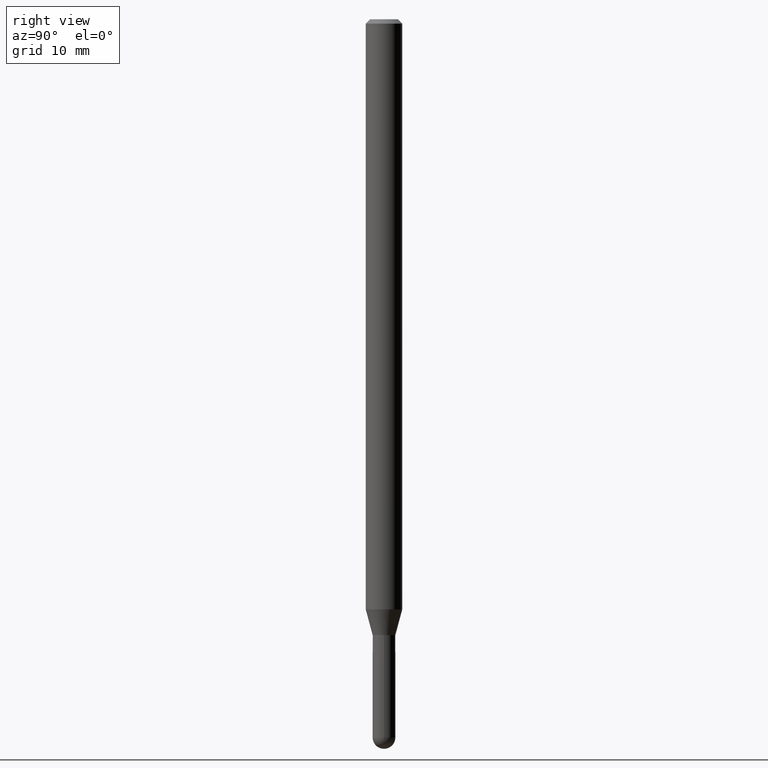
[diagram: clean part render]
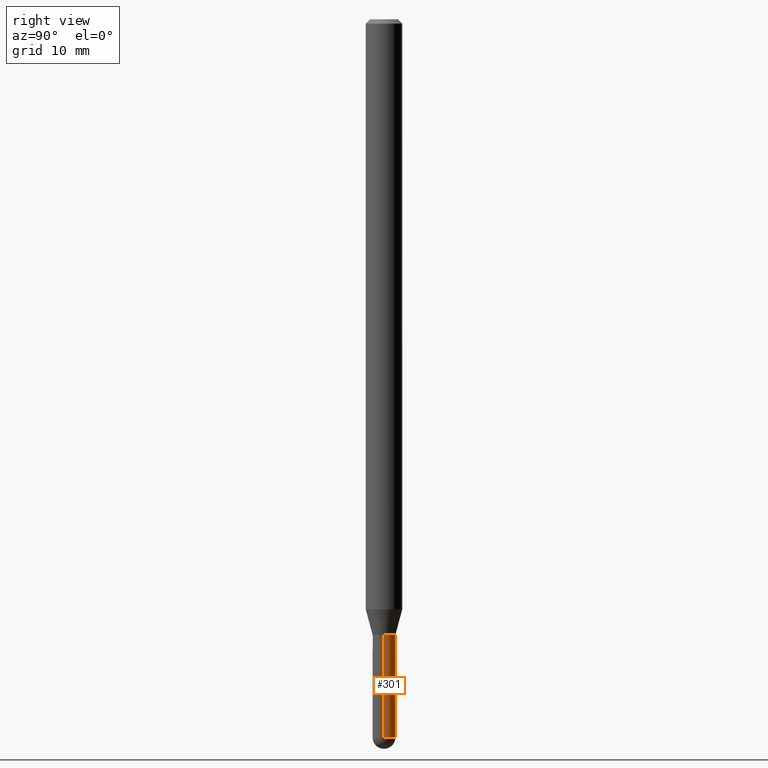
[diagram: same view with one face highlighted and labeled with its STEP entity id]
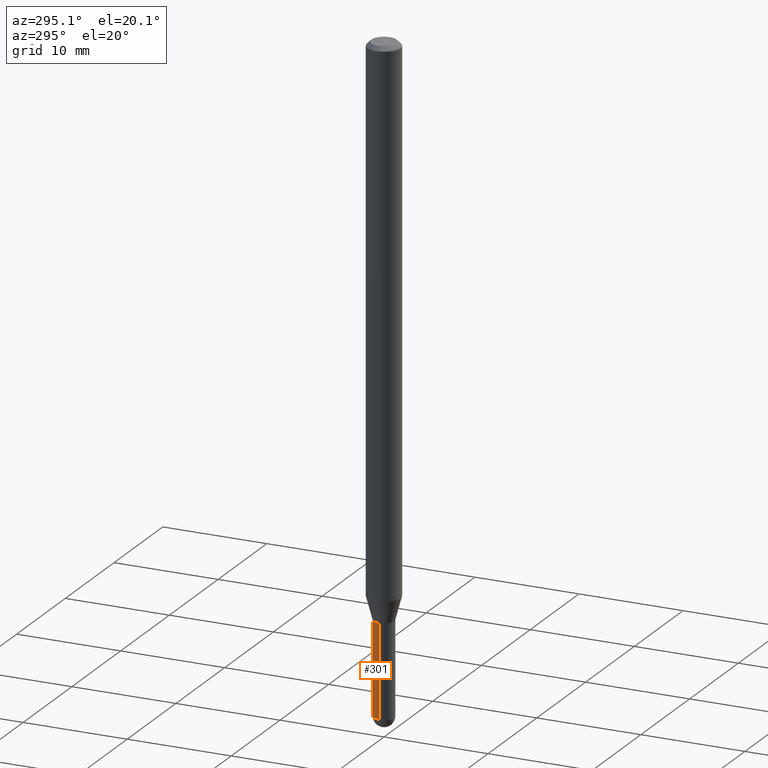
[diagram: same view with one face highlighted and labeled with its STEP entity id]
A machine part, right view. The second image highlights one B-rep face of the part: STEP entity #301.
A second angle (auxiliary view) of the same face is appended — the face is thin or edge-on in the first view.
In plain terms, the highlighted cylindrical surface (edge-blend (fillet) strip) has radius 0.9906 mm, axis along (-0, 0, 1).
Its self-contained STEP definition (entity closure, byte-faithful):
#7 = CARTESIAN_POINT ( 'NONE',  ( 0.03899999999999999994, -7.639361169388800962E-15, -2.110000000000000320 ) ) ;
#12 = VERTEX_POINT ( 'NONE', #7 ) ;
#24 = CYLINDRICAL_SURFACE ( 'NONE', #65, 0.03899999999999999994 ) ;
#42 = EDGE_CURVE ( 'NONE', #420, #12, #501, .T. ) ;
#65 = AXIS2_PLACEMENT_3D ( 'NONE', #346, #283, #264 ) ;
#76 = CARTESIAN_POINT ( 'NONE',  ( -0.03899999999999999994, -7.702668932979569039E-15, -2.110000000000000320 ) ) ;
#77 = CIRCLE ( 'NONE', #367, 0.03899999999999999994 ) ;
#81 = CARTESIAN_POINT ( 'NONE',  ( 6.018298732021620914E-29, -8.592535574892981353E-15, -2.460999999999999854 ) ) ;
#104 = VERTEX_POINT ( 'NONE', #76 ) ;
#109 = ORIENTED_EDGE ( 'NONE', *, *, #42, .F. ) ;
#118 = EDGE_LOOP ( 'NONE', ( #220, #203, #439, #109, #119 ) ) ;
#119 = ORIENTED_EDGE ( 'NONE', *, *, #247, .T. ) ;
#123 = CIRCLE ( 'NONE', #408, 0.03899999999999999994 ) ;
#130 = AXIS2_PLACEMENT_3D ( 'NONE', #81, #302, #332 ) ;
#131 = CARTESIAN_POINT ( 'NONE',  ( -0.03899999999999999994, -7.702668932979569039E-15, -2.460999999999999854 ) ) ;
#159 = VERTEX_POINT ( 'NONE', #131 ) ;
#160 = FACE_OUTER_BOUND ( 'NONE', #118, .T. ) ;
#201 = CARTESIAN_POINT ( 'NONE',  ( 0.03899999999999999994, -2.723355444297643682E-16, 1.901708942560414931E-30 ) ) ;
#203 = ORIENTED_EDGE ( 'NONE', *, *, #374, .T. ) ;
#208 = VERTEX_POINT ( 'NONE', #391 ) ;
#213 = EDGE_CURVE ( 'NONE', #12, #104, #77, .T. ) ;
#220 = ORIENTED_EDGE ( 'NONE', *, *, #287, .T. ) ;
#236 = LINE ( 'NONE', #309, #254 ) ;
#247 = EDGE_CURVE ( 'NONE', #420, #208, #434, .T. ) ;
#249 = DIRECTION ( 'NONE',  ( 1.000000000000000000, -6.982962677686283277E-15, 0.000000000000000000 ) ) ;
#254 = VECTOR ( 'NONE', #424, 39.37007874015748143 ) ;
#264 = DIRECTION ( 'NONE',  ( 1.000000000000000000, -6.982962677686265922E-15, 4.876176775795935793E-29 ) ) ;
#283 = DIRECTION ( 'NONE',  ( -2.445468806185136597E-29, 3.491481338843145583E-15, 1.000000000000000000 ) ) ;
#287 = EDGE_CURVE ( 'NONE', #208, #159, #123, .T. ) ;
#301 = ADVANCED_FACE ( 'NONE', ( #160 ), #24, .T. ) ;
#302 = DIRECTION ( 'NONE',  ( -2.445468806185136597E-29, 3.491481338843145583E-15, 1.000000000000000000 ) ) ;
#309 = CARTESIAN_POINT ( 'NONE',  ( -0.03899999999999999994, 2.771116669464390721E-16, -1.918384685199413078E-30 ) ) ;
#332 = DIRECTION ( 'NONE',  ( 1.000000000000000000, -6.982962677686283277E-15, 0.000000000000000000 ) ) ;
#346 = CARTESIAN_POINT ( 'NONE',  ( 0.000000000000000000, 0.000000000000000000, 0.000000000000000000 ) ) ;
#349 = CARTESIAN_POINT ( 'NONE',  ( 5.159939181050639071E-29, -7.367025624959036939E-15, -2.110000000000000320 ) ) ;
#356 = DIRECTION ( 'NONE',  ( -2.445468806185136597E-29, 3.491481338843145583E-15, 1.000000000000000000 ) ) ;
#367 = AXIS2_PLACEMENT_3D ( 'NONE', #349, #356, #427 ) ;
#374 = EDGE_CURVE ( 'NONE', #159, #104, #236, .T. ) ;
#391 = CARTESIAN_POINT ( 'NONE',  ( 2.723355444298241737E-16, 0.03899999999999134714, -2.460999999999999854 ) ) ;
#394 = CARTESIAN_POINT ( 'NONE',  ( 0.03899999999999999994, -8.252116144355773169E-15, -2.460999999999999854 ) ) ;
#408 = AXIS2_PLACEMENT_3D ( 'NONE', #445, #410, #249 ) ;
#410 = DIRECTION ( 'NONE',  ( -2.445468806185136597E-29, 3.491481338843145583E-15, 1.000000000000000000 ) ) ;
#420 = VERTEX_POINT ( 'NONE', #394 ) ;
#424 = DIRECTION ( 'NONE',  ( -2.445468806185136877E-29, 3.491481338843145188E-15, 1.000000000000000000 ) ) ;
#427 = DIRECTION ( 'NONE',  ( 1.000000000000000000, -6.982962677686258033E-15, 0.000000000000000000 ) ) ;
#434 = CIRCLE ( 'NONE', #130, 0.03899999999999999994 ) ;
#439 = ORIENTED_EDGE ( 'NONE', *, *, #213, .F. ) ;
#445 = CARTESIAN_POINT ( 'NONE',  ( 6.018298732021620914E-29, -8.592535574892981353E-15, -2.460999999999999854 ) ) ;
#462 = DIRECTION ( 'NONE',  ( -2.445468806185136877E-29, 3.491481338843145188E-15, 1.000000000000000000 ) ) ;
#481 = VECTOR ( 'NONE', #462, 39.37007874015748143 ) ;
#501 = LINE ( 'NONE', #201, #481 ) ;